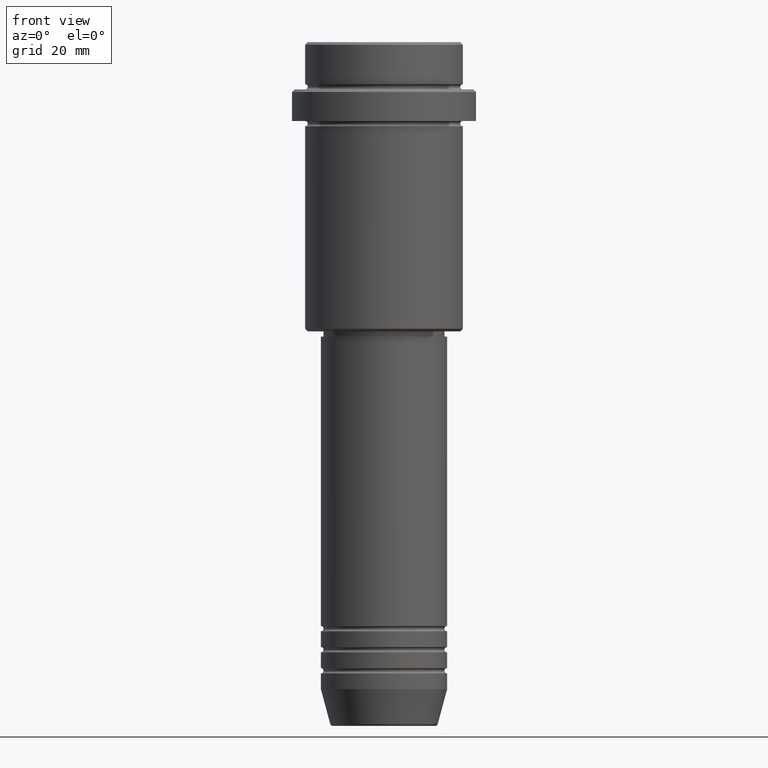
[diagram: clean part render]
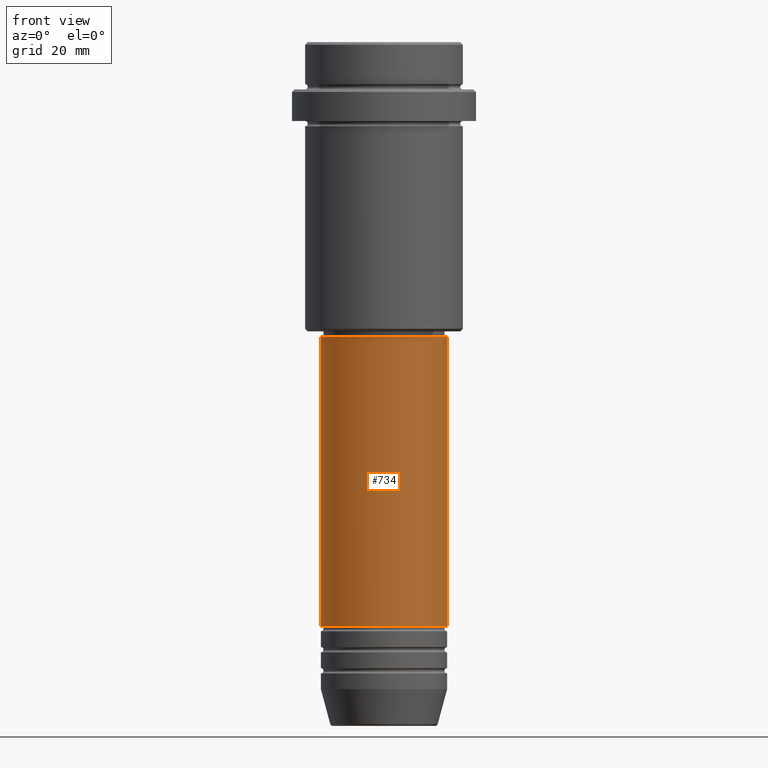
[diagram: same view with one face highlighted and labeled with its STEP entity id]
A machine part, front view. The second image highlights one B-rep face of the part: STEP entity #734.
In plain terms, the highlighted cylindrical surface (partial cylindrical patch) has radius 12 mm, axis along (-0, -0, 1).
Its self-contained STEP definition (entity closure, byte-faithful):
#50 = EDGE_CURVE ( 'NONE', #1003, #429, #1178, .T. ) ;
#125 = EDGE_CURVE ( 'NONE', #769, #429, #1372, .T. ) ;
#159 = DIRECTION ( 'NONE',  ( -0.000000000000000000, -0.000000000000000000, 1.000000000000000000 ) ) ;
#184 = CARTESIAN_POINT ( 'NONE',  ( 11.99999999999999822, 0.000000000000000000, -55.99999999999997158 ) ) ;
#200 = ORIENTED_EDGE ( 'NONE', *, *, #125, .F. ) ;
#205 = ORIENTED_EDGE ( 'NONE', *, *, #1157, .F. ) ;
#211 = VERTEX_POINT ( 'NONE', #250 ) ;
#219 = ORIENTED_EDGE ( 'NONE', *, *, #676, .T. ) ;
#223 = CARTESIAN_POINT ( 'NONE',  ( 0.000000000000000000, 0.000000000000000000, -110.9999999999998721 ) ) ;
#235 = VECTOR ( 'NONE', #646, 1000.000000000000000 ) ;
#244 = AXIS2_PLACEMENT_3D ( 'NONE', #616, #1038, #504 ) ;
#250 = CARTESIAN_POINT ( 'NONE',  ( -12.00000000000000000, 1.469576158976823947E-15, -110.9999999999998721 ) ) ;
#273 = CARTESIAN_POINT ( 'NONE',  ( 12.00000000000000000, 0.000000000000000000, 0.000000000000000000 ) ) ;
#280 = DIRECTION ( 'NONE',  ( 1.000000000000000000, 0.000000000000000000, 0.000000000000000000 ) ) ;
#339 = CARTESIAN_POINT ( 'NONE',  ( -11.99999999999999822, 1.469576158976823750E-15, -55.99999999999997158 ) ) ;
#410 = CARTESIAN_POINT ( 'NONE',  ( -12.00000000000000000, 1.469576158976823947E-15, 0.000000000000000000 ) ) ;
#429 = VERTEX_POINT ( 'NONE', #184 ) ;
#452 = AXIS2_PLACEMENT_3D ( 'NONE', #223, #1344, #563 ) ;
#493 = CIRCLE ( 'NONE', #452, 12.00000000000000000 ) ;
#497 = LINE ( 'NONE', #410, #235 ) ;
#504 = DIRECTION ( 'NONE',  ( 1.000000000000000000, 0.000000000000000000, 0.000000000000000000 ) ) ;
#563 = DIRECTION ( 'NONE',  ( 1.000000000000000000, 0.000000000000000000, 0.000000000000000000 ) ) ;
#616 = CARTESIAN_POINT ( 'NONE',  ( 0.000000000000000000, 0.000000000000000000, -55.99999999999997158 ) ) ;
#632 = DIRECTION ( 'NONE',  ( -0.000000000000000000, -0.000000000000000000, 1.000000000000000000 ) ) ;
#646 = DIRECTION ( 'NONE',  ( -0.000000000000000000, -0.000000000000000000, 1.000000000000000000 ) ) ;
#658 = AXIS2_PLACEMENT_3D ( 'NONE', #719, #159, #280 ) ;
#676 = EDGE_CURVE ( 'NONE', #211, #1003, #493, .T. ) ;
#719 = CARTESIAN_POINT ( 'NONE',  ( 0.000000000000000000, 0.000000000000000000, 0.000000000000000000 ) ) ;
#734 = ADVANCED_FACE ( 'NONE', ( #1035 ), #1247, .T. ) ;
#748 = EDGE_LOOP ( 'NONE', ( #205, #219, #1365, #200 ) ) ;
#769 = VERTEX_POINT ( 'NONE', #339 ) ;
#819 = CARTESIAN_POINT ( 'NONE',  ( 12.00000000000000000, 0.000000000000000000, -110.9999999999998721 ) ) ;
#1003 = VERTEX_POINT ( 'NONE', #819 ) ;
#1035 = FACE_OUTER_BOUND ( 'NONE', #748, .T. ) ;
#1038 = DIRECTION ( 'NONE',  ( -0.000000000000000000, -0.000000000000000000, 1.000000000000000000 ) ) ;
#1090 = VECTOR ( 'NONE', #632, 1000.000000000000000 ) ;
#1157 = EDGE_CURVE ( 'NONE', #211, #769, #497, .T. ) ;
#1178 = LINE ( 'NONE', #273, #1090 ) ;
#1247 = CYLINDRICAL_SURFACE ( 'NONE', #658, 12.00000000000000000 ) ;
#1344 = DIRECTION ( 'NONE',  ( -0.000000000000000000, -0.000000000000000000, 1.000000000000000000 ) ) ;
#1365 = ORIENTED_EDGE ( 'NONE', *, *, #50, .T. ) ;
#1372 = CIRCLE ( 'NONE', #244, 11.99999999999999822 ) ;